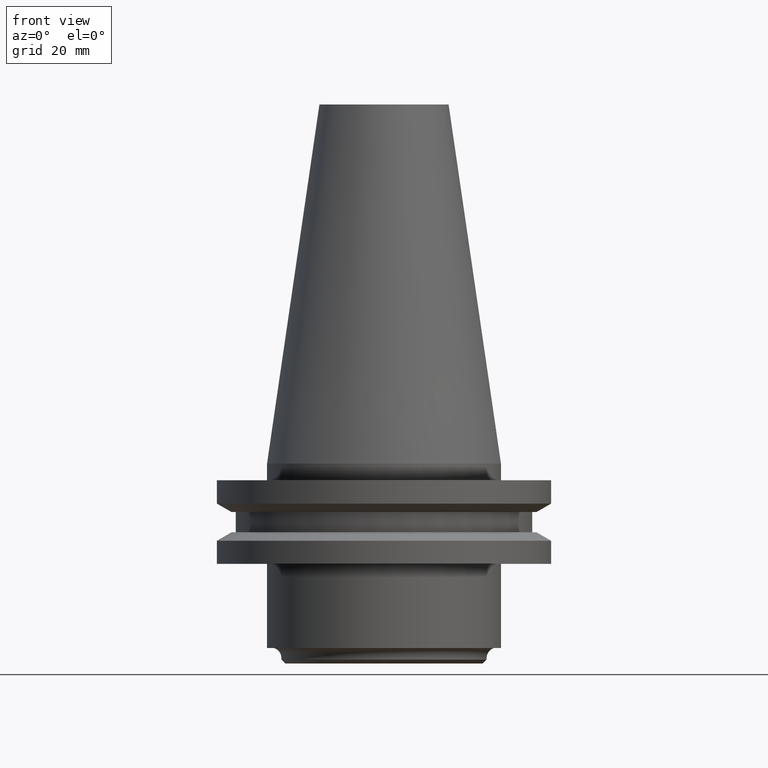
[diagram: clean part render]
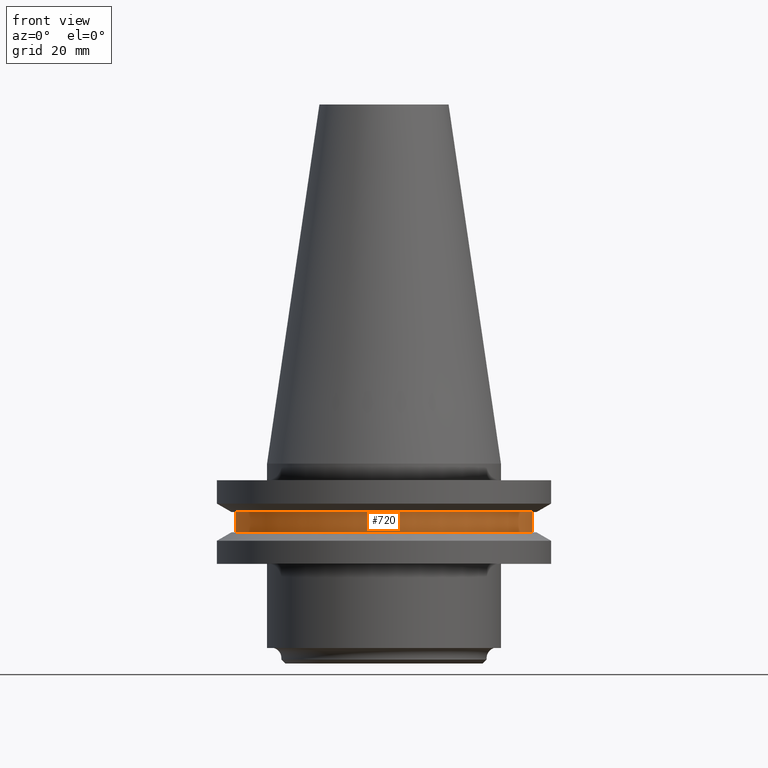
[diagram: same view with one face highlighted and labeled with its STEP entity id]
A machine part, front view. The second image highlights one B-rep face of the part: STEP entity #720.
In plain terms, the highlighted cylindrical surface (partial cylindrical patch) has radius 28.18 mm, axis along (-0, -0, 1).
Its self-contained STEP definition (entity closure, byte-faithful):
#59 = VERTEX_POINT ( 'NONE', #347 ) ;
#62 = DIRECTION ( 'NONE',  ( 1.000000000000000000, 0.000000000000000000, 0.000000000000000000 ) ) ;
#69 = VERTEX_POINT ( 'NONE', #101 ) ;
#98 = AXIS2_PLACEMENT_3D ( 'NONE', #713, #142, #62 ) ;
#101 = CARTESIAN_POINT ( 'NONE',  ( -28.17999999999999972, 3.451054679997241634E-15, -13.05499999999999794 ) ) ;
#110 = VECTOR ( 'NONE', #189, 1000.000000000000000 ) ;
#122 = LINE ( 'NONE', #129, #110 ) ;
#129 = CARTESIAN_POINT ( 'NONE',  ( -28.17999999999999972, 3.451054679997241634E-15, 68.25000000000000000 ) ) ;
#137 = VERTEX_POINT ( 'NONE', #235 ) ;
#142 = DIRECTION ( 'NONE',  ( -0.000000000000000000, -0.000000000000000000, 1.000000000000000000 ) ) ;
#179 = EDGE_CURVE ( 'NONE', #137, #620, #387, .T. ) ;
#189 = DIRECTION ( 'NONE',  ( -0.000000000000000000, -0.000000000000000000, 1.000000000000000000 ) ) ;
#235 = CARTESIAN_POINT ( 'NONE',  ( 28.17999999999999972, 0.000000000000000000, -13.05499999999999794 ) ) ;
#246 = DIRECTION ( 'NONE',  ( -0.000000000000000000, -0.000000000000000000, 1.000000000000000000 ) ) ;
#289 = CARTESIAN_POINT ( 'NONE',  ( 28.17999999999999972, 0.000000000000000000, -9.204999999999991189 ) ) ;
#303 = AXIS2_PLACEMENT_3D ( 'NONE', #314, #246, #503 ) ;
#314 = CARTESIAN_POINT ( 'NONE',  ( 0.000000000000000000, 0.000000000000000000, 68.25000000000000000 ) ) ;
#347 = CARTESIAN_POINT ( 'NONE',  ( -28.17999999999999972, 3.451054679997241634E-15, -9.204999999999991189 ) ) ;
#353 = CIRCLE ( 'NONE', #98, 28.17999999999999972 ) ;
#387 = LINE ( 'NONE', #446, #392 ) ;
#389 = ORIENTED_EDGE ( 'NONE', *, *, #750, .F. ) ;
#392 = VECTOR ( 'NONE', #702, 1000.000000000000000 ) ;
#403 = ORIENTED_EDGE ( 'NONE', *, *, #668, .T. ) ;
#439 = FACE_OUTER_BOUND ( 'NONE', #615, .T. ) ;
#446 = CARTESIAN_POINT ( 'NONE',  ( 28.17999999999999972, 0.000000000000000000, 68.25000000000000000 ) ) ;
#500 = DIRECTION ( 'NONE',  ( 1.000000000000000000, 0.000000000000000000, 0.000000000000000000 ) ) ;
#501 = EDGE_CURVE ( 'NONE', #69, #59, #122, .T. ) ;
#503 = DIRECTION ( 'NONE',  ( 1.000000000000000000, 0.000000000000000000, 0.000000000000000000 ) ) ;
#551 = ORIENTED_EDGE ( 'NONE', *, *, #501, .F. ) ;
#615 = EDGE_LOOP ( 'NONE', ( #551, #403, #742, #389 ) ) ;
#620 = VERTEX_POINT ( 'NONE', #289 ) ;
#668 = EDGE_CURVE ( 'NONE', #69, #137, #675, .T. ) ;
#675 = CIRCLE ( 'NONE', #709, 28.17999999999999972 ) ;
#691 = CYLINDRICAL_SURFACE ( 'NONE', #303, 28.17999999999999972 ) ;
#702 = DIRECTION ( 'NONE',  ( -0.000000000000000000, -0.000000000000000000, 1.000000000000000000 ) ) ;
#709 = AXIS2_PLACEMENT_3D ( 'NONE', #746, #756, #500 ) ;
#713 = CARTESIAN_POINT ( 'NONE',  ( 0.000000000000000000, 0.000000000000000000, -9.204999999999991189 ) ) ;
#720 = ADVANCED_FACE ( 'NONE', ( #439 ), #691, .T. ) ;
#742 = ORIENTED_EDGE ( 'NONE', *, *, #179, .T. ) ;
#746 = CARTESIAN_POINT ( 'NONE',  ( 0.000000000000000000, 0.000000000000000000, -13.05499999999999794 ) ) ;
#750 = EDGE_CURVE ( 'NONE', #59, #620, #353, .T. ) ;
#756 = DIRECTION ( 'NONE',  ( -0.000000000000000000, -0.000000000000000000, 1.000000000000000000 ) ) ;